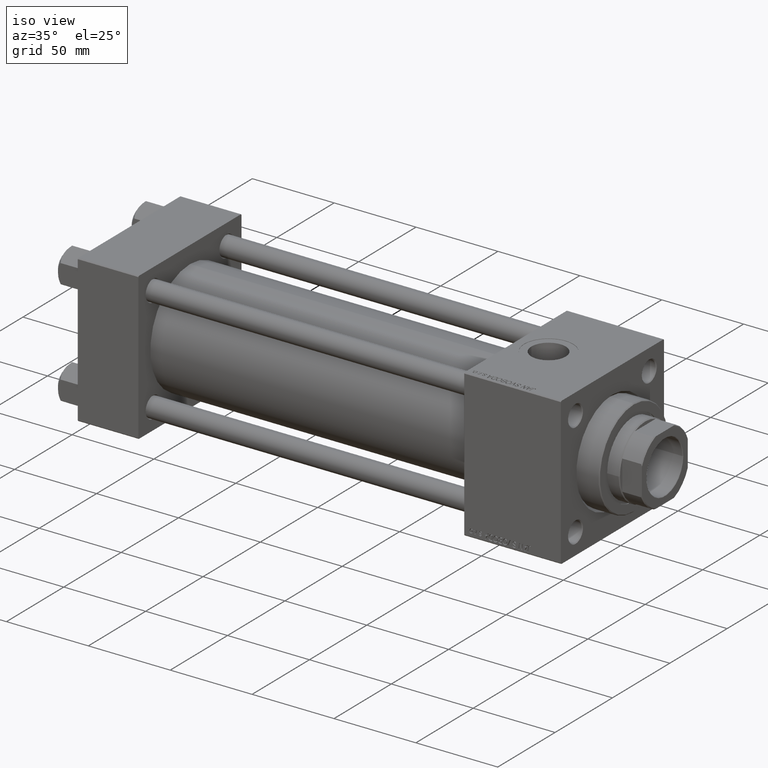
[diagram: clean part render]
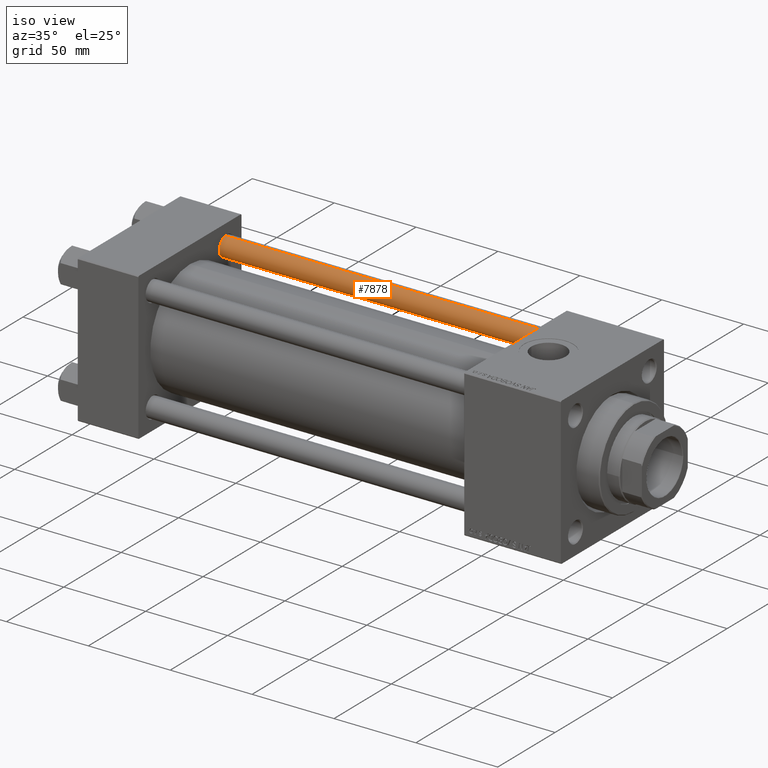
[diagram: same view with one face highlighted and labeled with its STEP entity id]
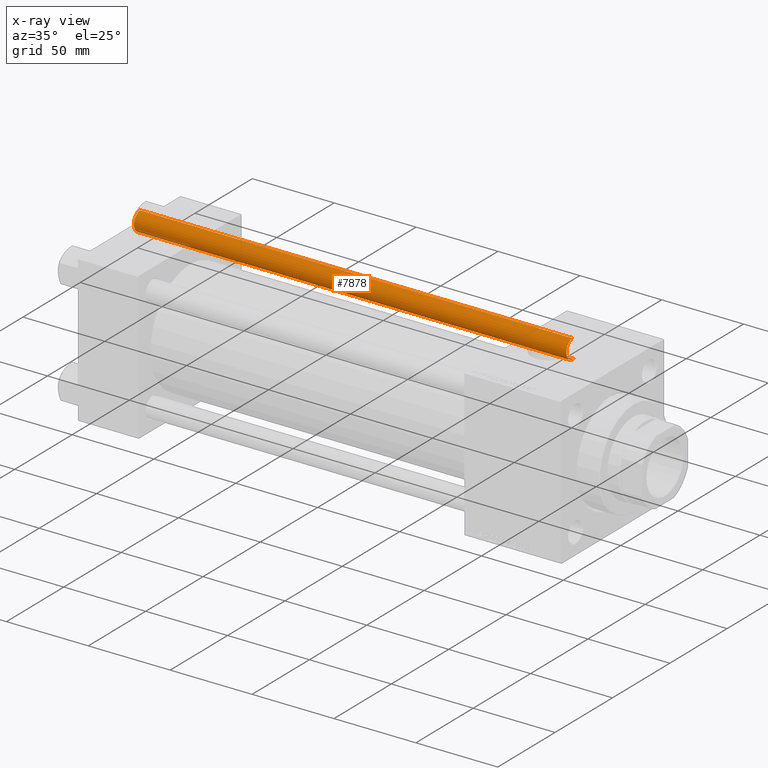
[diagram: x-ray of the same camera — body ghosted, the highlighted face saturated]
A machine part, iso view. The second image highlights one B-rep face of the part: STEP entity #7878.
The next image is the same camera in x-ray: the body ghosted, the highlighted face saturated — about 2% of this face is hidden behind the body in this view.
In plain terms, the highlighted cylindrical surface (edge-blend (fillet) strip) has radius 6 mm, axis along (-1, 0, 0).
Its self-contained STEP definition (entity closure, byte-faithful):
#536 = VECTOR ( 'NONE', #6493, 1000.000000000000000 ) ;
#1128 = DIRECTION ( 'NONE',  ( 1.000000000000000000, 0.000000000000000000, 0.000000000000000000 ) ) ;
#2897 = CARTESIAN_POINT ( 'NONE',  ( -6.000000000000000888, 0.000000000000000000, 264.5000000000000000 ) ) ;
#4648 = ORIENTED_EDGE ( 'NONE', *, *, #5395, .T. ) ;
#5167 = CARTESIAN_POINT ( 'NONE',  ( 6.000000000000000888, 7.347880794884120722E-16, 264.5000000000000000 ) ) ;
#5395 = EDGE_CURVE ( 'NONE', #15323, #16810, #38814, .T. ) ;
#6493 = DIRECTION ( 'NONE',  ( -0.000000000000000000, -0.000000000000000000, -1.000000000000000000 ) ) ;
#7878 = ADVANCED_FACE ( 'NONE', ( #15969 ), #13149, .T. ) ;
#9093 = CARTESIAN_POINT ( 'NONE',  ( 0.000000000000000000, 0.000000000000000000, 265.0000000000000000 ) ) ;
#9315 = CARTESIAN_POINT ( 'NONE',  ( 6.000000000000000888, 7.347880794884120722E-16, 265.0000000000000000 ) ) ;
#13149 = CYLINDRICAL_SURFACE ( 'NONE', #32443, 6.000000000000000888 ) ;
#13506 = LINE ( 'NONE', #14257, #39523 ) ;
#14257 = CARTESIAN_POINT ( 'NONE',  ( -6.000000000000000888, 0.000000000000000000, 265.0000000000000000 ) ) ;
#15286 = CARTESIAN_POINT ( 'NONE',  ( 6.000000000000000888, 7.347880794884120722E-16, 0.5000000000000004441 ) ) ;
#15323 = VERTEX_POINT ( 'NONE', #20509 ) ;
#15725 = DIRECTION ( 'NONE',  ( -0.000000000000000000, -0.000000000000000000, 1.000000000000000000 ) ) ;
#15969 = FACE_OUTER_BOUND ( 'NONE', #42160, .T. ) ;
#16434 = ORIENTED_EDGE ( 'NONE', *, *, #29449, .T. ) ;
#16810 = VERTEX_POINT ( 'NONE', #15286 ) ;
#19985 = ORIENTED_EDGE ( 'NONE', *, *, #37665, .T. ) ;
#20509 = CARTESIAN_POINT ( 'NONE',  ( -6.000000000000000888, 0.000000000000000000, 0.5000000000000004441 ) ) ;
#23485 = AXIS2_PLACEMENT_3D ( 'NONE', #43454, #43207, #1128 ) ;
#26522 = VERTEX_POINT ( 'NONE', #5167 ) ;
#27614 = CARTESIAN_POINT ( 'NONE',  ( 0.000000000000000000, 0.000000000000000000, 0.5000000000000004441 ) ) ;
#29125 = VERTEX_POINT ( 'NONE', #2897 ) ;
#29449 = EDGE_CURVE ( 'NONE', #29125, #15323, #13506, .T. ) ;
#31397 = DIRECTION ( 'NONE',  ( -0.000000000000000000, -0.000000000000000000, -1.000000000000000000 ) ) ;
#31662 = DIRECTION ( 'NONE',  ( 1.000000000000000000, 0.000000000000000000, 0.000000000000000000 ) ) ;
#32364 = LINE ( 'NONE', #9315, #536 ) ;
#32443 = AXIS2_PLACEMENT_3D ( 'NONE', #9093, #31397, #39509 ) ;
#35355 = ORIENTED_EDGE ( 'NONE', *, *, #49251, .F. ) ;
#37665 = EDGE_CURVE ( 'NONE', #26522, #29125, #44529, .T. ) ;
#38814 = CIRCLE ( 'NONE', #45290, 6.000000000000000888 ) ;
#39509 = DIRECTION ( 'NONE',  ( -1.000000000000000000, 0.000000000000000000, 0.000000000000000000 ) ) ;
#39523 = VECTOR ( 'NONE', #48460, 1000.000000000000000 ) ;
#42160 = EDGE_LOOP ( 'NONE', ( #35355, #19985, #16434, #4648 ) ) ;
#43207 = DIRECTION ( 'NONE',  ( 0.000000000000000000, 0.000000000000000000, -1.000000000000000000 ) ) ;
#43454 = CARTESIAN_POINT ( 'NONE',  ( 0.000000000000000000, 0.000000000000000000, 264.5000000000000000 ) ) ;
#44529 = CIRCLE ( 'NONE', #23485, 6.000000000000000888 ) ;
#45290 = AXIS2_PLACEMENT_3D ( 'NONE', #27614, #15725, #31662 ) ;
#48460 = DIRECTION ( 'NONE',  ( -0.000000000000000000, -0.000000000000000000, -1.000000000000000000 ) ) ;
#49251 = EDGE_CURVE ( 'NONE', #26522, #16810, #32364, .T. ) ;